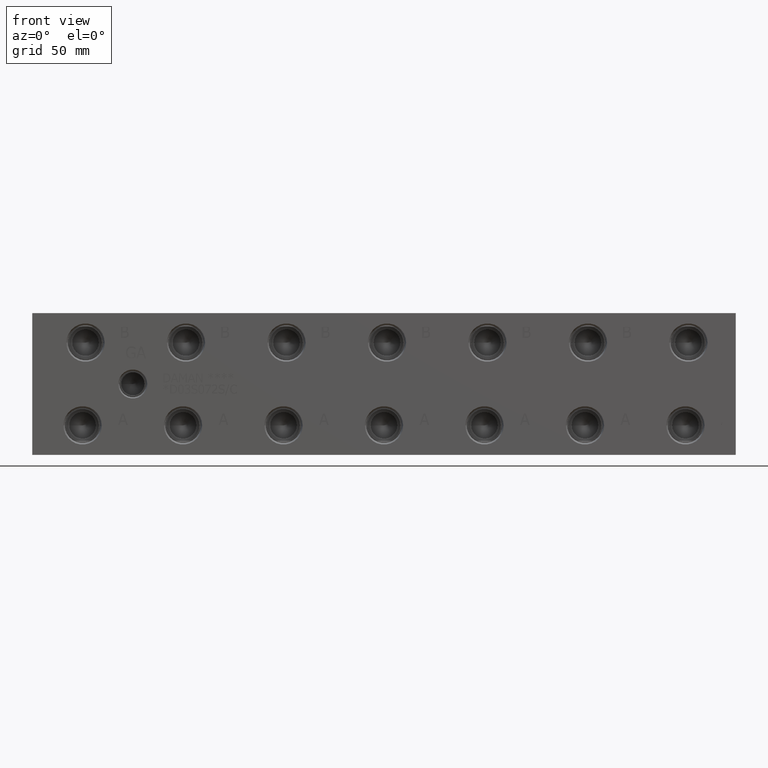
[diagram: clean part render]
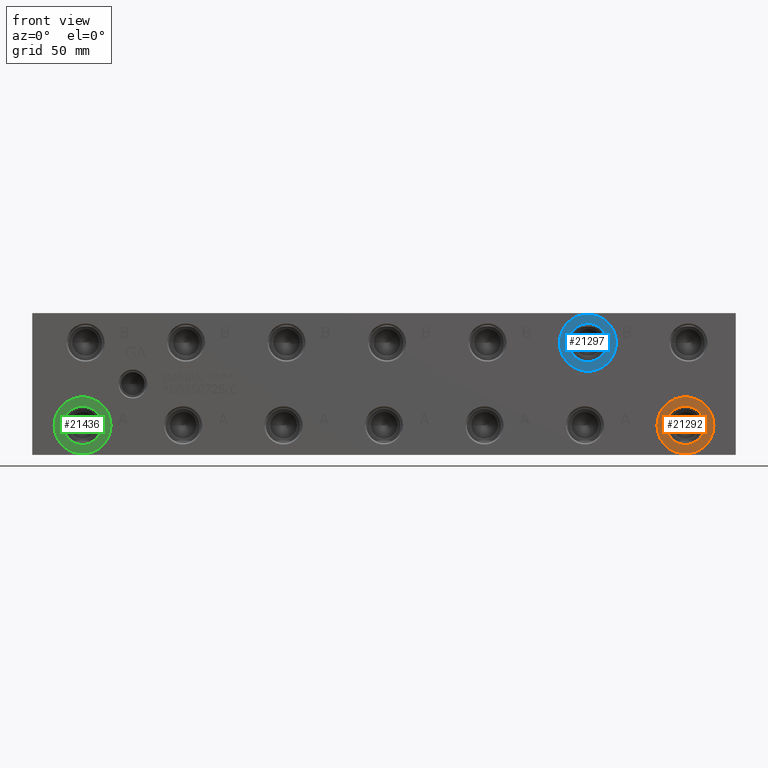
[diagram: same view with three faces highlighted in distinct colors, each labeled with its STEP entity id]
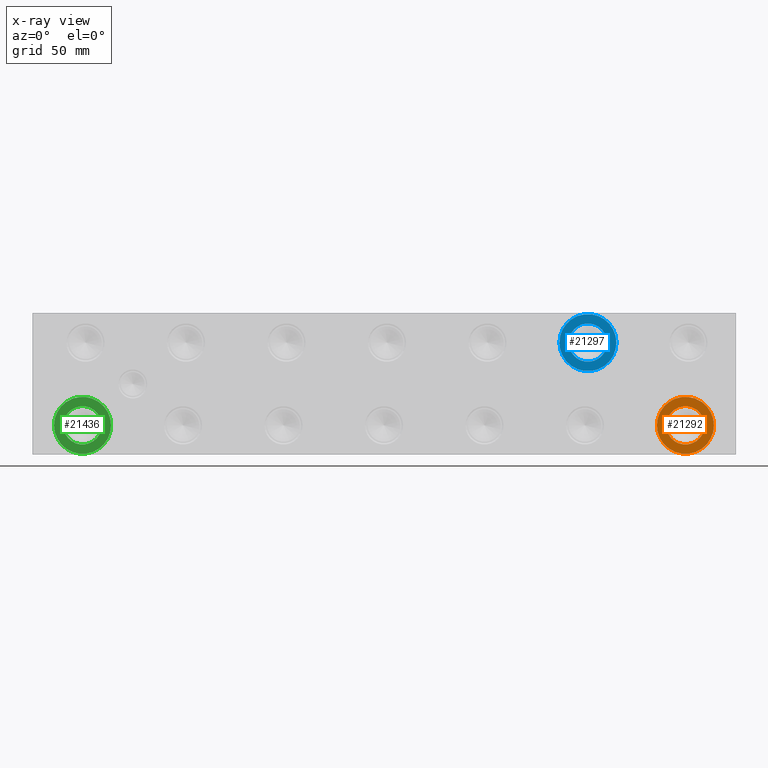
[diagram: x-ray of the same camera — body ghosted, the three highlighted faces saturated]
A machine part, front view with three faces highlighted in distinct colors.
The next image is the same camera in x-ray (body ghosted, the three faces saturated) — at least one of them is partly hidden behind the body in this view.
Their STEP definitions:

[orange] entity #21292 — the highlighted planar face has unit normal (0, 1, 0).
#785=CIRCLE('',#22606,15.3162);
#786=CIRCLE('',#22607,15.3162);
#787=CIRCLE('',#22609,10.2997);
#788=CIRCLE('',#22610,10.2997);
#1247=FACE_BOUND('',#4242,.T.);
#2988=FACE_OUTER_BOUND('',#4241,.T.);
#4241=EDGE_LOOP('',(#17955,#17956));
#4242=EDGE_LOOP('',(#17957,#17958));
#9830=VERTEX_POINT('',#36525);
#9831=VERTEX_POINT('',#36527);
#9832=VERTEX_POINT('',#36531);
#9833=VERTEX_POINT('',#36532);
#12669=EDGE_CURVE('',#9830,#9831,#785,.T.);
#12670=EDGE_CURVE('',#9831,#9830,#786,.T.);
#12671=EDGE_CURVE('',#9832,#9833,#787,.T.);
#12672=EDGE_CURVE('',#9833,#9832,#788,.T.);
#17955=ORIENTED_EDGE('',*,*,#12670,.F.);
#17956=ORIENTED_EDGE('',*,*,#12669,.F.);
#17957=ORIENTED_EDGE('',*,*,#12671,.T.);
#17958=ORIENTED_EDGE('',*,*,#12672,.T.);
#19679=PLANE('',#22608);
#21292=ADVANCED_FACE('',(#2988,#1247),#19679,.F.);
#22606=AXIS2_PLACEMENT_3D('',#36528,#26884,#26885);
#22607=AXIS2_PLACEMENT_3D('',#36529,#26886,#26887);
#22608=AXIS2_PLACEMENT_3D('',#36530,#26888,#26889);
#22609=AXIS2_PLACEMENT_3D('',#36533,#26890,#26891);
#22610=AXIS2_PLACEMENT_3D('',#36534,#26892,#26893);
#26884=DIRECTION('center_axis',(0.,1.,0.));
#26885=DIRECTION('ref_axis',(1.,0.,0.));
#26886=DIRECTION('center_axis',(0.,1.,0.));
#26887=DIRECTION('ref_axis',(1.,0.,0.));
#26888=DIRECTION('center_axis',(0.,1.,0.));
#26889=DIRECTION('ref_axis',(0.,0.,1.));
#26890=DIRECTION('center_axis',(0.,1.,0.));
#26891=DIRECTION('ref_axis',(1.,0.,0.));
#26892=DIRECTION('center_axis',(0.,1.,0.));
#26893=DIRECTION('ref_axis',(1.,0.,0.));
#36525=CARTESIAN_POINT('',(335.5086,0.7874,15.875));
#36527=CARTESIAN_POINT('',(366.141,0.7874,15.875));
#36528=CARTESIAN_POINT('Origin',(350.8248,0.7874,15.875));
#36529=CARTESIAN_POINT('Origin',(350.8248,0.7874,15.875));
#36530=CARTESIAN_POINT('Origin',(361.1245,0.7874,15.875));
#36531=CARTESIAN_POINT('',(361.1245,0.7874,15.875));
#36532=CARTESIAN_POINT('',(340.5251,0.787400000000009,15.875));
#36533=CARTESIAN_POINT('Origin',(350.8248,0.7874,15.875));
#36534=CARTESIAN_POINT('Origin',(350.8248,0.7874,15.875));

[blue] entity #21297 — the highlighted planar face has unit normal (0, 1, 0).
#794=CIRCLE('',#22620,15.3162);
#795=CIRCLE('',#22621,15.3162);
#796=CIRCLE('',#22623,10.2997);
#797=CIRCLE('',#22624,10.2997);
#1248=FACE_BOUND('',#4248,.T.);
#2993=FACE_OUTER_BOUND('',#4247,.T.);
#4247=EDGE_LOOP('',(#17982,#17983));
#4248=EDGE_LOOP('',(#17984,#17985));
#9839=VERTEX_POINT('',#36552);
#9840=VERTEX_POINT('',#36554);
#9841=VERTEX_POINT('',#36558);
#9842=VERTEX_POINT('',#36559);
#12682=EDGE_CURVE('',#9839,#9840,#794,.T.);
#12683=EDGE_CURVE('',#9840,#9839,#795,.T.);
#12684=EDGE_CURVE('',#9841,#9842,#796,.T.);
#12685=EDGE_CURVE('',#9842,#9841,#797,.T.);
#17982=ORIENTED_EDGE('',*,*,#12683,.F.);
#17983=ORIENTED_EDGE('',*,*,#12682,.F.);
#17984=ORIENTED_EDGE('',*,*,#12684,.T.);
#17985=ORIENTED_EDGE('',*,*,#12685,.T.);
#19680=PLANE('',#22622);
#21297=ADVANCED_FACE('',(#2993,#1248),#19680,.F.);
#22620=AXIS2_PLACEMENT_3D('',#36555,#26916,#26917);
#22621=AXIS2_PLACEMENT_3D('',#36556,#26918,#26919);
#22622=AXIS2_PLACEMENT_3D('',#36557,#26920,#26921);
#22623=AXIS2_PLACEMENT_3D('',#36560,#26922,#26923);
#22624=AXIS2_PLACEMENT_3D('',#36561,#26924,#26925);
#26916=DIRECTION('center_axis',(0.,1.,0.));
#26917=DIRECTION('ref_axis',(1.,0.,0.));
#26918=DIRECTION('center_axis',(0.,1.,0.));
#26919=DIRECTION('ref_axis',(1.,0.,0.));
#26920=DIRECTION('center_axis',(0.,1.,0.));
#26921=DIRECTION('ref_axis',(0.,0.,1.));
#26922=DIRECTION('center_axis',(0.,1.,0.));
#26923=DIRECTION('ref_axis',(1.,0.,0.));
#26924=DIRECTION('center_axis',(0.,1.,0.));
#26925=DIRECTION('ref_axis',(1.,0.,0.));
#36552=CARTESIAN_POINT('',(283.1338,0.7874,60.325));
#36554=CARTESIAN_POINT('',(313.7662,0.7874,60.325));
#36555=CARTESIAN_POINT('Origin',(298.45,0.7874,60.325));
#36556=CARTESIAN_POINT('Origin',(298.45,0.7874,60.325));
#36557=CARTESIAN_POINT('Origin',(308.7497,0.7874,60.325));
#36558=CARTESIAN_POINT('',(308.7497,0.7874,60.325));
#36559=CARTESIAN_POINT('',(288.1503,0.7874,60.325));
#36560=CARTESIAN_POINT('Origin',(298.45,0.7874,60.325));
#36561=CARTESIAN_POINT('Origin',(298.45,0.7874,60.325));

[green] entity #21436 — the highlighted planar face has unit normal (0, 1, 0).
#1006=CIRCLE('',#22971,15.3162);
#1007=CIRCLE('',#22972,15.3162);
#1008=CIRCLE('',#22974,10.2997);
#1009=CIRCLE('',#22975,10.2997);
#1273=FACE_BOUND('',#4412,.T.);
#3132=FACE_OUTER_BOUND('',#4411,.T.);
#4411=EDGE_LOOP('',(#18657,#18658));
#4412=EDGE_LOOP('',(#18659,#18660));
#10065=VERTEX_POINT('',#37243);
#10066=VERTEX_POINT('',#37245);
#10067=VERTEX_POINT('',#37249);
#10068=VERTEX_POINT('',#37250);
#13008=EDGE_CURVE('',#10065,#10066,#1006,.T.);
#13009=EDGE_CURVE('',#10066,#10065,#1007,.T.);
#13010=EDGE_CURVE('',#10067,#10068,#1008,.T.);
#13011=EDGE_CURVE('',#10068,#10067,#1009,.T.);
#18657=ORIENTED_EDGE('',*,*,#13009,.F.);
#18658=ORIENTED_EDGE('',*,*,#13008,.F.);
#18659=ORIENTED_EDGE('',*,*,#13010,.T.);
#18660=ORIENTED_EDGE('',*,*,#13011,.T.);
#19705=PLANE('',#22973);
#21436=ADVANCED_FACE('',(#3132,#1273),#19705,.F.);
#22971=AXIS2_PLACEMENT_3D('',#37246,#27732,#27733);
#22972=AXIS2_PLACEMENT_3D('',#37247,#27734,#27735);
#22973=AXIS2_PLACEMENT_3D('',#37248,#27736,#27737);
#22974=AXIS2_PLACEMENT_3D('',#37251,#27738,#27739);
#22975=AXIS2_PLACEMENT_3D('',#37252,#27740,#27741);
#27732=DIRECTION('center_axis',(0.,1.,0.));
#27733=DIRECTION('ref_axis',(1.,0.,0.));
#27734=DIRECTION('center_axis',(0.,1.,0.));
#27735=DIRECTION('ref_axis',(1.,0.,0.));
#27736=DIRECTION('center_axis',(0.,1.,0.));
#27737=DIRECTION('ref_axis',(0.,0.,1.));
#27738=DIRECTION('center_axis',(0.,1.,0.));
#27739=DIRECTION('ref_axis',(1.,0.,0.));
#27740=DIRECTION('center_axis',(0.,1.,0.));
#27741=DIRECTION('ref_axis',(1.,0.,0.));
#37243=CARTESIAN_POINT('',(11.6586,0.7874,15.875));
#37245=CARTESIAN_POINT('',(42.291,0.7874,15.875));
#37246=CARTESIAN_POINT('Origin',(26.9748,0.7874,15.875));
#37247=CARTESIAN_POINT('Origin',(26.9748,0.7874,15.875));
#37248=CARTESIAN_POINT('Origin',(37.2745,0.7874,15.875));
#37249=CARTESIAN_POINT('',(37.2745,0.7874,15.875));
#37250=CARTESIAN_POINT('',(16.6751,0.7874,15.875));
#37251=CARTESIAN_POINT('Origin',(26.9748,0.7874,15.875));
#37252=CARTESIAN_POINT('Origin',(26.9748,0.7874,15.875));